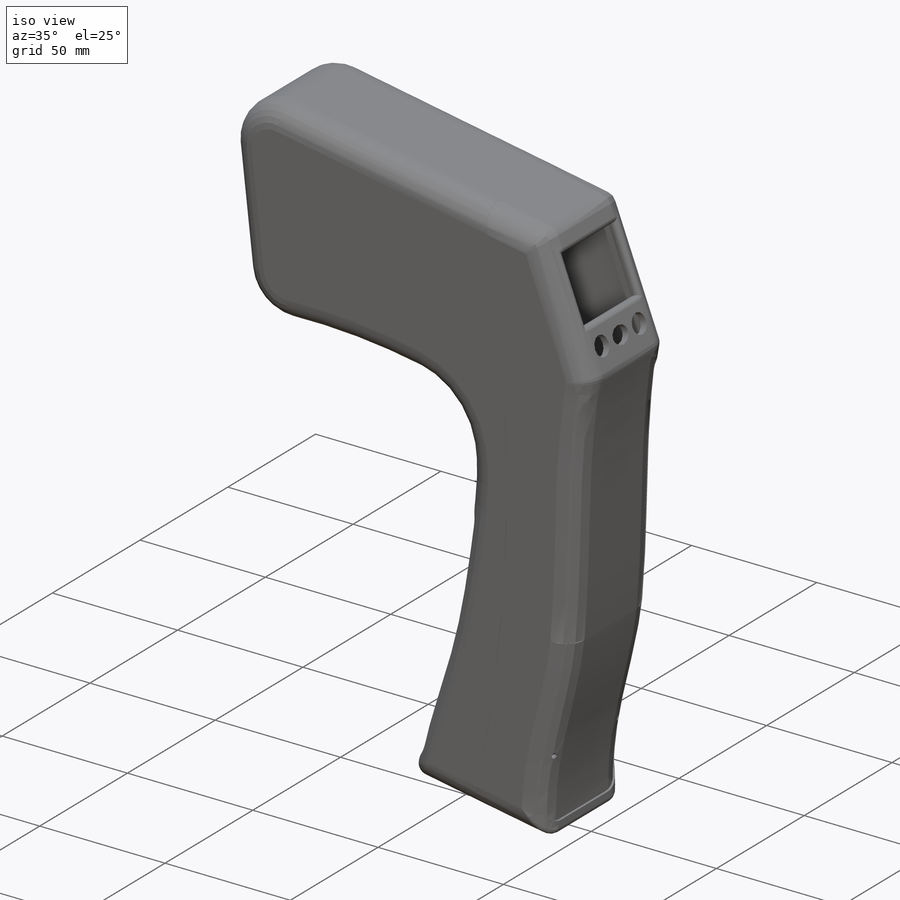
[diagram: iso view]
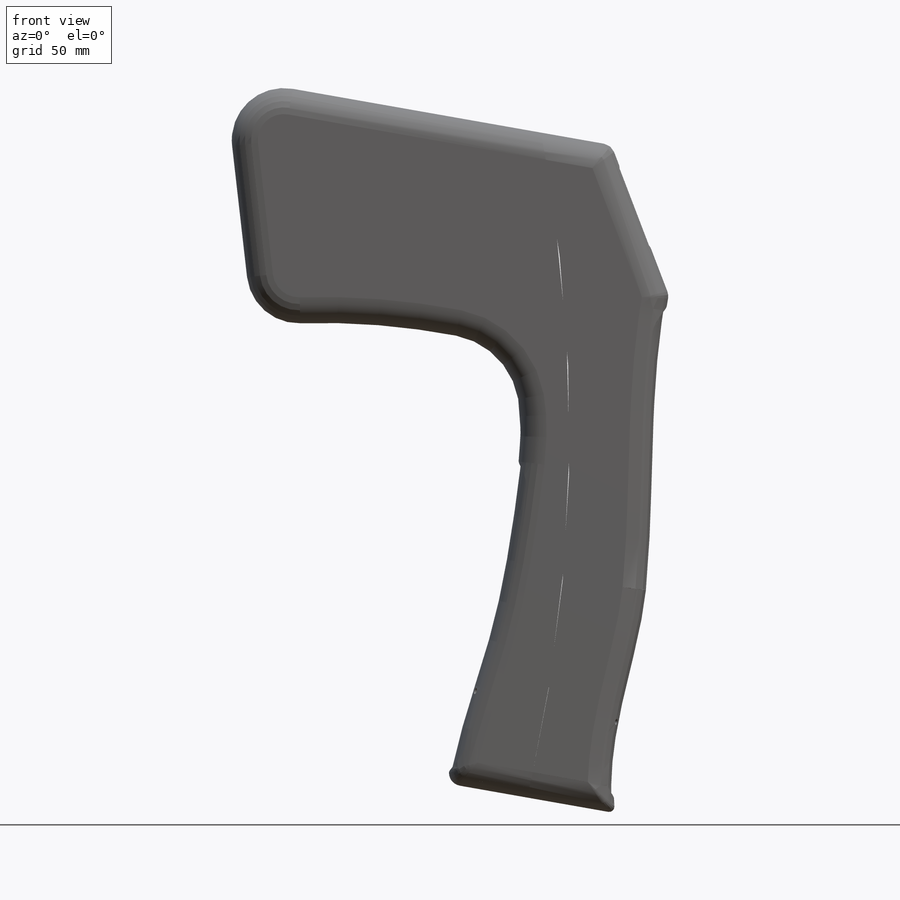
[diagram: front view]
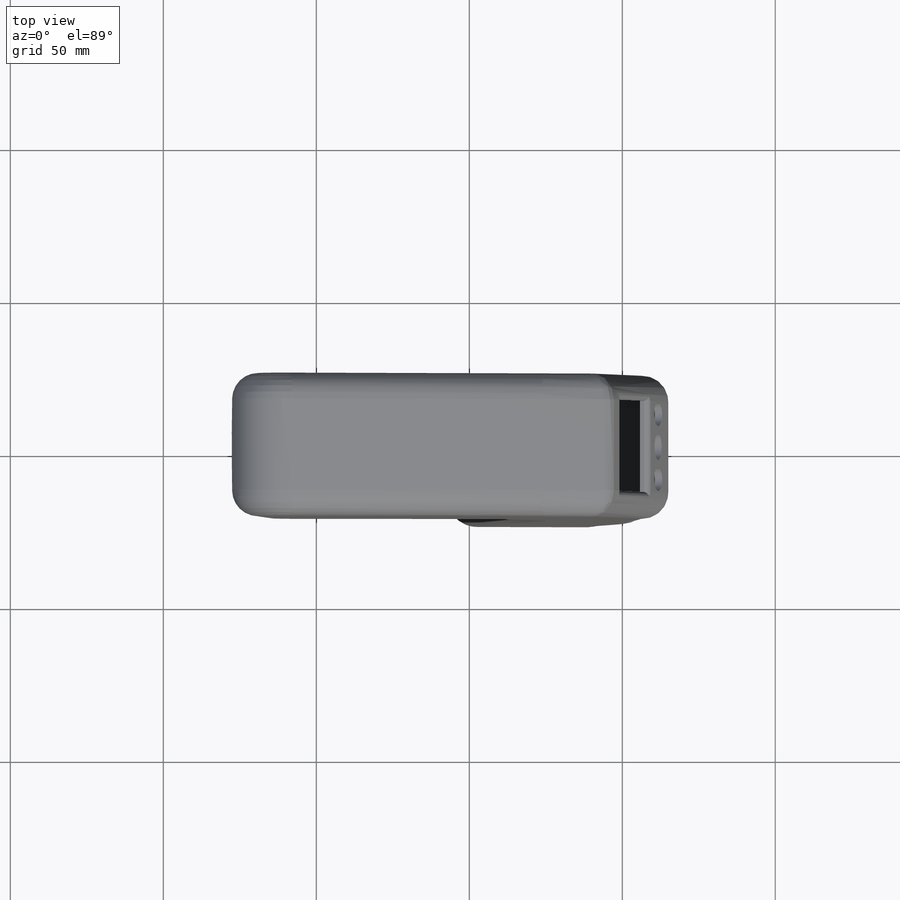
[diagram: top view]
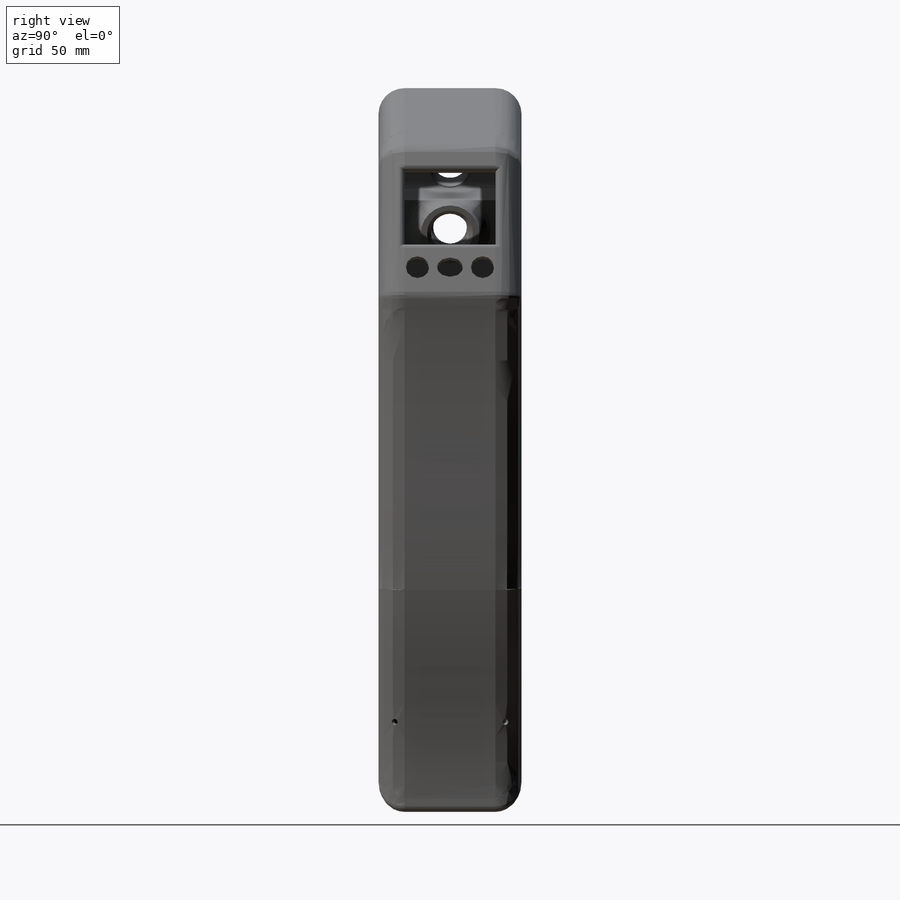
[diagram: right view]
SOLIDWORKS PART (.sldprt)
format: sldprt  version: not decoded by parser v0  size: 2,016,768 bytes
history: native  units: mm
features: sketch x36, plane x13, material x10, shell x9, cut_extrude x7, extrude x6, hole x6, mirror x3, chamfer x2, sweep x2, fillet x1, thread x1 (+9 scaffold rows collapsed; 9 parser-record rows omitted)
feature tree (114):
  scaffold x9  (default folders/planes/origin — collapsed)
  material  "Material <nicht festgelegt>"
  material  "Grundgeometrie"
  material  "Bedienpanel"
  material  "Auslösevorrichtng"
  material  "Aussparungen Weichkomponente"
  material  "Stativ Aufnahme"
  material  "Kanäl für Wichkomponente"
  material  "Messeinrichtung"
  material  "Pyrometer"
  material  "Laser"
  plane  "Vorne"
  plane  "Oben"
  plane  "Rechts"
  parser-record x9  (decoder bookkeeping rows leaked as tree rows — omitted from the tree; the rows remain in map.json)
  sketch  "Skizze1"  dims[c1.D1=0.5mm c1.D2=0.5mm c1.D3=0.5mm c1.D4=0.5mm c1.D5=0.5mm c2.D4=10.0mm c2.D1=2.0mm c2.D7=20.0mm c2.D8=5.0mm c2.D9=5.0mm c2.D3=5.0mm c2.D11=5.0mm c2.D2=5.0mm c2.D10=5.0mm c2.D6=20.0mm c3.D8=30.0mm c3.D1=60.0mm c3.D2=~68.171842mm c4.D2=10.0deg c4.D3=250.0mm c4.D1=60.0mm c5.D3=~199.488881mm c5.D5=150.0mm c5.D6=60.0mm c5.D7=75.0mm c5.D10=198.0mm c5.D2=65.0mm c5.D11=50.0mm c5.D12=65.0mm]
  extrude  "Korpus"  Depth=55mm
  fillet  "Verrundung Korpus"  Radius=10mm
  shell  "Hohlkörper - Wandstärke 3mm"  Thickness=3mm
  sketch  "Skizze2"  dims[c1.D6=9.0mm c1.D7=10.0mm c1.D4=9.0mm c1.D1=35.0mm c1.D2=30.0mm c1.D3=0.0mm c2.D4=0.0mm c2.D5=20.0mm c2.D8=5.0mm c2.D9=0.0mm c2.D10=12.5mm c2.D11=12.5mm c2.D12=10.0mm c2.D13=10.0mm c2.D14=10.0mm c2.D15=10.0mm c2.D16=8.0mm c2.D17=17.5mm c2.D18=10.0mm c2.D3=5.0mm c2.D7=0.0mm c3.D9=25.0mm c3.D13=10.0mm]
  cut_extrude  "Display + Tasten"  [1 undecoded]
  shell  "Displayverrundung"  Thickness=2mm
  sketch  "Skizze22"  dims[c1.D1=1.0mm c1.D2=1.5mm c1.D3=~5.748336mm c2.D3=~0.385713deg c3.D3=~1.404745mm c4.D3=360.0deg c4.D4=~1.613691mm c5.D3=2.0mm c5.D4=~0.992609mm c6.D4=180.0deg]
  extrude  "Führungsleiste"  [1 undecoded]
  shell  "Verrundung Führungsleiste"  Thickness=0.1mm
  plane  "Hilfsebene Abzug"
  sketch  "Skizze13"  dims[D1=35.0mm D2=20.0mm D3=25.0mm D4=5.0mm D5=5.0mm D6=15.0mm]
  cut_extrude  "Abzug"  Depth=30mm
  plane  "Hilfsebene Griff vorne"  Offset=70mm
  sketch  "Skizze14"  dims[D5=10.0mm D1=120.0mm D2=1.0mm D3=8.0mm D4=8.0mm D6=100.0mm]
  cut_extrude  "Aussparung Weichkompo Griff vorne"  Depth=1mm
  plane  "Hilfsebene hinten"  Offset=100mm
  sketch  "Skizze16"  dims[D5=10.0mm D1=3.0mm D2=3.0mm D3=2.0mm D4=2.0mm]
  cut_extrude  "Aussparung Weichkompo Griff hinten"  Depth=1mm
  plane  "Hilfsebene vorne gesamt"  Offset=85mm
  sketch  "Skizze31"  dims[c1.D1=12.0mm c1.D2=13.0mm c1.D3=~10.050895mm c2.D1=20.0mm c2.D3=10.0mm c3.D1=100.0mm c3.D3=10.5mm c3.D4=8.5mm c4.D1=100.0mm c4.D2=100.0mm c5.D2=~0.732921deg c6.D2=8.5mm c6.D4=11.5mm c6.D1=11.0mm c7.D2=~8.351647mm c7.D1=8.5mm c8.D2=~10.535654mm c8.D3=1.5mm]
  extrude  "Führung Stativaufnahme Messingbuchse"  Depth=7.45mm
  sketch  "Skizze35"  dims[D1=11.5mm]
  extrude  "Stativaufnahme"  Depth=0.5mm
  shell  "Verrundung Stativaufnahmenkorpus"  Thickness=0.5mm
  mirror  "Korpus Stativaufnahme"
  hole  "Ø12.0 (12) Bohrung Stativaufnahme"  Diameter=12mm Depth=5mm
  sketch  "Skizze34"
  sketch  "Skizze32"  dims[hole-wizard template sketch: 46 standard entries collapsed; hole parameters kept: c15.Bohrerdurchmesser=12.0mm c15.Bohrungstiefe=5.0mm c15.D3=~14.816244mm c15.Spitzenwinkel=118.0deg]
  chamfer  "Fase Stativaufnahme innen"  Distance=0.5mm Angle=45deg
  shell  "Verrundung Stativaufnahmenkorpus oben"  Thickness=1mm
  plane  "Hilfsebene "
  hole  "2mm Bohrung innen/außen"  Diameter=2mm Depth=5mm
  sketch  "3D-Skizze2"
  sketch  "Skizze18"  dims[hole-wizard template sketch: 49 standard entries collapsed; hole parameters kept: c15.Spitzenwinkel=118.0deg]
  mirror  "Spiegeln Kanal Weichkomponente"
  sketch  "3D-Skizze8"
  sketch  "Linie für Kanal hinten"
  plane  "Hilfsebene Kanal hinten"
  sketch  "Skizze37"
  plane  "Ebene für Kanalgeometrie hinten"
  sketch  "Skizze38"  dims[D1=1.0mm]
  sweep  "Kanal hinten"
  sketch  "Linie für Kanal vorne"
  plane  "Hilfsebene Kanal vorne"
  sketch  "Skizze39"
  plane  "Ebene für Kanalgeometrie vorne"
  sketch  "Skizze40"  dims[D1=0.5mm]
  sweep  "Kanal vorne"
  sketch  "Skizze36"  dims[c1.D1=25.0mm c1.D2=10.0mm c2.D1=20.0mm c2.D2=10.0mm c2.D3=5.0mm c2.D4=15.0mm c2.D5=2.5mm c2.D6=2.5mm c3.D1=7.5mm c3.D3=~24.685882mm c3.D5=20.0mm c4.D1=22.0mm c4.D2=10.0mm c4.D3=6.0mm]
  extrude  "Verschluss Pyrometer"  Depth=30mm
  sketch  "Punkt für Pyrometerborungen"  dims[D1=10.0mm]
  hole  "Ø13,5 Bohrung für Pyrometer"  Diameter=11mm Depth=26.383053mm
  sketch  "Skizze45"
  sketch  "Skizze44"  dims[hole-wizard template sketch: 59 standard entries collapsed; hole parameters kept: c18.Bohrerdurchmesser=11.0mm c18.Bohrungstiefe=~26.383053mm]
  plane  "Hilfsebene Pyrometer Bohrung"  Offset=30mm
  hole  "Ø20.0 Schutzbohung Pyrometer"  Diameter=20mm Depth=18.5mm
  sketch  "Skizze52"
  sketch  "Skizze51"  dims[hole-wizard template sketch: 46 standard entries collapsed; hole parameters kept: c15.Bohrerdurchmesser=20.0mm c15.Bohrungstiefe=18.5mm c15.D3=~14.816244mm c15.Spitzenwinkel=180.0deg]
  hole  "M14x1.5 Gewindebohrung für Pyrometer"  Diameter=12.5mm Depth=10mm
  sketch  "Skizze54"
  sketch  "Skizze53"  dims[hole-wizard template sketch: 39 standard entries collapsed; hole parameters kept: c13.Bohrerdurchmesser=12.5mm c13.Bohrungstiefe=10.0mm c13.Senkdurchmesser (Oben)=15.0mm c13.D4=~33.297463mm c13.Senkwinkel (Oben)=90.0deg c14.D5=~14.816244mm c14.Spitzenwinkel=118.0deg]
  thread  "Bohrungsgewinde3"  Diameter=8.5mm  [1 undecoded]
  shell  "Verrundung Schutzbohrung Pyrometer"  Thickness=7mm
  sketch  "Skizze55"  dims[c1.D1=~13.440488mm c1.D4=10.0mm c2.D1=1.0mm c2.D2=16.0mm c2.D3=3.0mm c3.D2=17.5mm]
  cut_extrude  "Feinmodellierung Pyrometerhalter 1"  Depth=30mm
  sketch  "Skizze56"  dims[c1.D1=15.0mm c1.D2=~9.603183mm c2.D1=6.0mm c2.D2=22.0mm c3.D1=0.0mm]
  cut_extrude  "Feinmodellierung Pyrometerhalter 2"  Depth=10mm
  mirror  "Spiegeln Feinmodellierung Pyrometerhalter 2"
  shell  "Verrundung Pyrometerhalterung"  Thickness=5mm
  sketch  "Skizze57"  dims[c1.D1=14.0mm c1.D2=11.0mm c1.D3=11.0mm c2.D2=0.0mm c2.D3=21.0mm c3.D2=0.0mm]
  extrude  "LED Halterung Ø14"  [1 undecoded]
  hole  "Ø10.2 Laser"  Diameter=12mm Depth=26.383053mm
  sketch  "Skizze59"
  sketch  "Skizze58"  dims[hole-wizard template sketch: 59 standard entries collapsed; hole parameters kept: c18.Bohrerdurchmesser=12.0mm c18.Bohrungstiefe=~26.383053mm]
  sketch  "Skizze60"  dims[D1=14.0mm]
  cut_extrude  "Laser Halterung kürzen"  Depth=6mm
  chamfer  "Laser Einführhilfe"  Distance=1mm Angle=30deg
  shell  "Verrundung Laser Halterung"  Thickness=1mm
  shell  "Verrundung Laser Bohrung außen"  Thickness=1mm
  sketch  "HilfsSkizze"  dims[D1=85.0mm]
  sketch  "3D-Skizze9"  dims[D1=7.45mm]
  sketch  "Skizze62"
decode coverage: 53 of 73 modeling features carry decoded parameters
note: ~ marks probable driven/reference dimensions
note: 4 parameter values undecoded
summary: Diameter pulled from absorbed wizard sketch | no parameter record found for 3 features
note: suppression state not decoded; provenance and decode notes live in map.json
